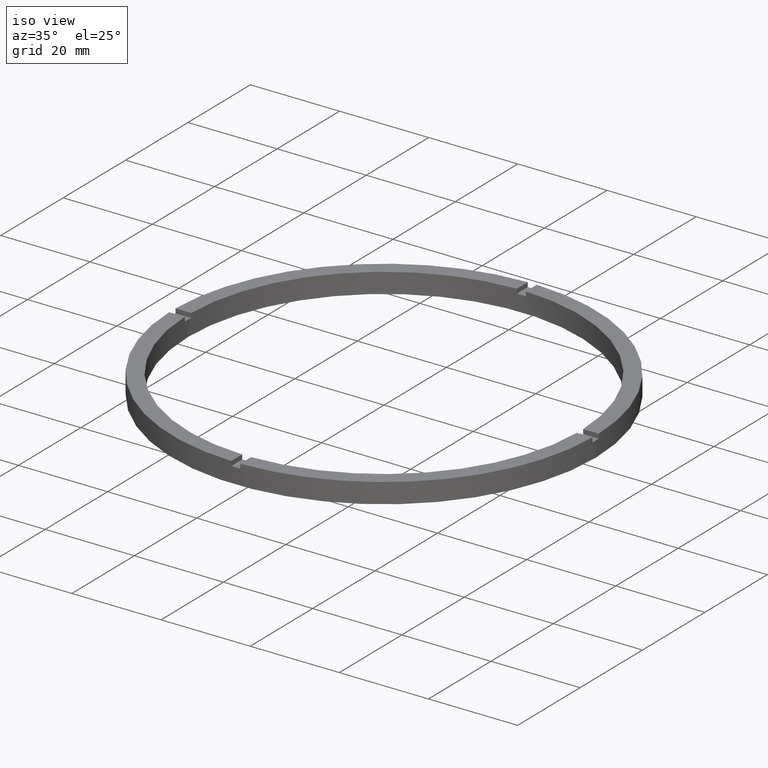
[diagram: clean part render]
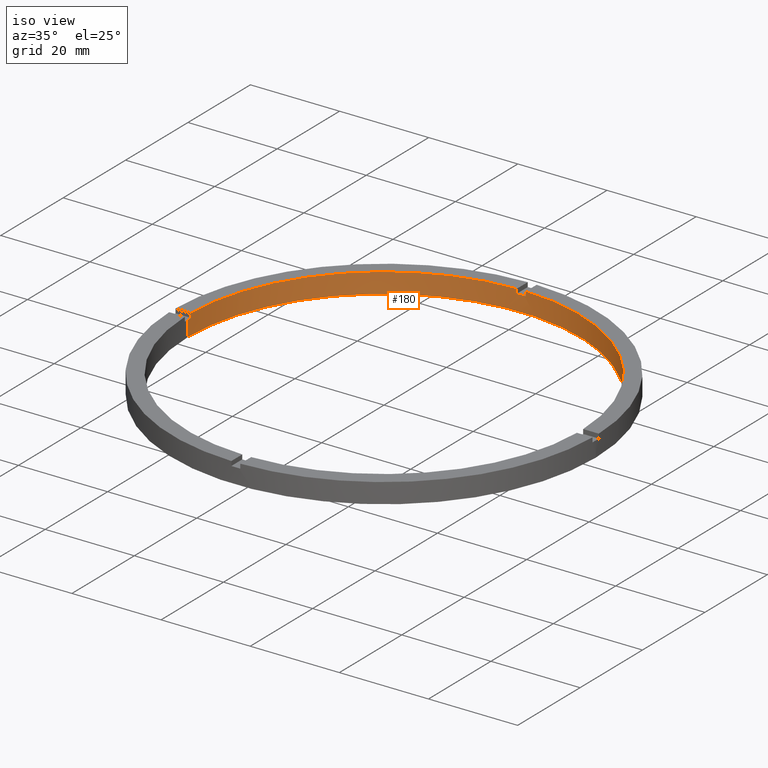
[diagram: same view with one face highlighted and labeled with its STEP entity id]
A machine part, iso view. The second image highlights one B-rep face of the part: STEP entity #180.
In plain terms, the highlighted cylindrical surface (partial cylindrical patch) has radius 44 mm, axis along (-0, -0, -1).
Its self-contained STEP definition (entity closure, byte-faithful):
#1 = EDGE_CURVE ( 'NONE', #493, #697, #99, .T. ) ;
#2 = CYLINDRICAL_SURFACE ( 'NONE', #44, 44.00000000000000000 ) ;
#42 = CARTESIAN_POINT ( 'NONE',  ( 0.000000000000000000, 0.000000000000000000, 4.500000000000000000 ) ) ;
#44 = AXIS2_PLACEMENT_3D ( 'NONE', #106, #563, #436 ) ;
#45 = DIRECTION ( 'NONE',  ( -0.000000000000000000, -0.000000000000000000, -1.000000000000000000 ) ) ;
#50 = CARTESIAN_POINT ( 'NONE',  ( -44.00000000000000000, 0.000000000000000000, 3.499999999999999556 ) ) ;
#71 = ORIENTED_EDGE ( 'NONE', *, *, #308, .T. ) ;
#78 = ORIENTED_EDGE ( 'NONE', *, *, #145, .F. ) ;
#82 = EDGE_CURVE ( 'NONE', #444, #192, #626, .T. ) ;
#84 = AXIS2_PLACEMENT_3D ( 'NONE', #42, #594, #349 ) ;
#89 = EDGE_CURVE ( 'NONE', #458, #712, #627, .T. ) ;
#99 = LINE ( 'NONE', #176, #610 ) ;
#106 = CARTESIAN_POINT ( 'NONE',  ( 0.000000000000000000, 0.000000000000000000, 4.500000000000000000 ) ) ;
#107 = CIRCLE ( 'NONE', #486, 44.00000000000000000 ) ;
#108 = CARTESIAN_POINT ( 'NONE',  ( 0.000000000000000000, 0.000000000000000000, 3.499999999999999556 ) ) ;
#116 = CIRCLE ( 'NONE', #312, 44.00000000000000000 ) ;
#131 = CARTESIAN_POINT ( 'NONE',  ( -44.00000000000000000, 0.000000000000000000, 0.000000000000000000 ) ) ;
#145 = EDGE_CURVE ( 'NONE', #712, #461, #107, .T. ) ;
#149 = AXIS2_PLACEMENT_3D ( 'NONE', #226, #291, #759 ) ;
#168 = ORIENTED_EDGE ( 'NONE', *, *, #414, .F. ) ;
#176 = CARTESIAN_POINT ( 'NONE',  ( -43.98863489584554287, 0.9999999999999701350, 4.500000000000000000 ) ) ;
#180 = ADVANCED_FACE ( 'NONE', ( #782 ), #2, .F. ) ;
#192 = VERTEX_POINT ( 'NONE', #664 ) ;
#226 = CARTESIAN_POINT ( 'NONE',  ( 0.000000000000000000, 0.000000000000000000, 4.500000000000000000 ) ) ;
#231 = VERTEX_POINT ( 'NONE', #561 ) ;
#249 = DIRECTION ( 'NONE',  ( 1.000000000000000000, 0.000000000000000000, 0.000000000000000000 ) ) ;
#276 = VECTOR ( 'NONE', #293, 1000.000000000000000 ) ;
#277 = LINE ( 'NONE', #403, #545 ) ;
#279 = CIRCLE ( 'NONE', #562, 44.00000000000000000 ) ;
#288 = CARTESIAN_POINT ( 'NONE',  ( 43.98863489584554287, 0.9999999999998441247, 4.500000000000000000 ) ) ;
#291 = DIRECTION ( 'NONE',  ( 0.000000000000000000, 0.000000000000000000, 1.000000000000000000 ) ) ;
#293 = DIRECTION ( 'NONE',  ( -0.000000000000000000, -0.000000000000000000, -1.000000000000000000 ) ) ;
#296 = CARTESIAN_POINT ( 'NONE',  ( -43.98863489584554287, 0.9999999999999701350, 4.500000000000000000 ) ) ;
#303 = DIRECTION ( 'NONE',  ( 1.000000000000000000, 0.000000000000000000, 0.000000000000000000 ) ) ;
#308 = EDGE_CURVE ( 'NONE', #751, #461, #776, .T. ) ;
#312 = AXIS2_PLACEMENT_3D ( 'NONE', #108, #507, #249 ) ;
#316 = DIRECTION ( 'NONE',  ( 0.000000000000000000, 0.000000000000000000, 1.000000000000000000 ) ) ;
#337 = CARTESIAN_POINT ( 'NONE',  ( 43.98863489584554287, 0.9999999999998441247, 3.499999999999999556 ) ) ;
#339 = DIRECTION ( 'NONE',  ( 0.000000000000000000, 0.000000000000000000, 1.000000000000000000 ) ) ;
#342 = DIRECTION ( 'NONE',  ( 0.000000000000000000, -0.000000000000000000, 1.000000000000000000 ) ) ;
#349 = DIRECTION ( 'NONE',  ( 1.000000000000000000, 0.000000000000000000, 0.000000000000000000 ) ) ;
#352 = DIRECTION ( 'NONE',  ( 0.000000000000000000, 0.000000000000000000, 1.000000000000000000 ) ) ;
#394 = CARTESIAN_POINT ( 'NONE',  ( 43.98863489584554287, 0.9999999999998441247, 4.500000000000000000 ) ) ;
#397 = VERTEX_POINT ( 'NONE', #394 ) ;
#403 = CARTESIAN_POINT ( 'NONE',  ( 0.9999999999999735767, 43.98863489584554287, 4.500000000000000000 ) ) ;
#414 = EDGE_CURVE ( 'NONE', #397, #496, #542, .T. ) ;
#420 = EDGE_CURVE ( 'NONE', #231, #691, #277, .T. ) ;
#429 = CIRCLE ( 'NONE', #535, 44.00000000000000000 ) ;
#434 = CIRCLE ( 'NONE', #84, 44.00000000000000000 ) ;
#436 = DIRECTION ( 'NONE',  ( -1.000000000000000000, 0.000000000000000000, 0.000000000000000000 ) ) ;
#442 = EDGE_CURVE ( 'NONE', #231, #192, #279, .T. ) ;
#444 = VERTEX_POINT ( 'NONE', #686 ) ;
#451 = ORIENTED_EDGE ( 'NONE', *, *, #420, .F. ) ;
#452 = ORIENTED_EDGE ( 'NONE', *, *, #638, .T. ) ;
#454 = DIRECTION ( 'NONE',  ( 0.000000000000000000, 0.000000000000000000, 1.000000000000000000 ) ) ;
#458 = VERTEX_POINT ( 'NONE', #706 ) ;
#461 = VERTEX_POINT ( 'NONE', #131 ) ;
#465 = DIRECTION ( 'NONE',  ( 1.000000000000000000, 0.000000000000000000, 0.000000000000000000 ) ) ;
#469 = ORIENTED_EDGE ( 'NONE', *, *, #442, .T. ) ;
#482 = ORIENTED_EDGE ( 'NONE', *, *, #731, .T. ) ;
#484 = CARTESIAN_POINT ( 'NONE',  ( 0.000000000000000000, 0.000000000000000000, 3.499999999999999556 ) ) ;
#486 = AXIS2_PLACEMENT_3D ( 'NONE', #708, #316, #505 ) ;
#493 = VERTEX_POINT ( 'NONE', #760 ) ;
#496 = VERTEX_POINT ( 'NONE', #337 ) ;
#503 = DIRECTION ( 'NONE',  ( -0.000000000000000000, -0.000000000000000000, -1.000000000000000000 ) ) ;
#505 = DIRECTION ( 'NONE',  ( 1.000000000000000000, 0.000000000000000000, 0.000000000000000000 ) ) ;
#507 = DIRECTION ( 'NONE',  ( 0.000000000000000000, 0.000000000000000000, 1.000000000000000000 ) ) ;
#522 = EDGE_CURVE ( 'NONE', #458, #496, #116, .T. ) ;
#535 = AXIS2_PLACEMENT_3D ( 'NONE', #484, #339, #465 ) ;
#542 = LINE ( 'NONE', #288, #276 ) ;
#545 = VECTOR ( 'NONE', #454, 1000.000000000000000 ) ;
#561 = CARTESIAN_POINT ( 'NONE',  ( 0.9999999999999735767, 43.98863489584554287, 3.499999999999999556 ) ) ;
#562 = AXIS2_PLACEMENT_3D ( 'NONE', #635, #342, #303 ) ;
#563 = DIRECTION ( 'NONE',  ( -0.000000000000000000, -0.000000000000000000, -1.000000000000000000 ) ) ;
#588 = CARTESIAN_POINT ( 'NONE',  ( 0.9999999999999735767, 43.98863489584554287, 4.500000000000000000 ) ) ;
#594 = DIRECTION ( 'NONE',  ( 0.000000000000000000, 0.000000000000000000, 1.000000000000000000 ) ) ;
#595 = ORIENTED_EDGE ( 'NONE', *, *, #82, .F. ) ;
#598 = DIRECTION ( 'NONE',  ( -0.000000000000000000, -0.000000000000000000, -1.000000000000000000 ) ) ;
#600 = EDGE_LOOP ( 'NONE', ( #673, #721, #168, #452, #451, #469, #595, #482, #704, #723, #71, #78 ) ) ;
#610 = VECTOR ( 'NONE', #352, 1000.000000000000000 ) ;
#626 = LINE ( 'NONE', #684, #631 ) ;
#627 = LINE ( 'NONE', #770, #629 ) ;
#629 = VECTOR ( 'NONE', #598, 1000.000000000000000 ) ;
#631 = VECTOR ( 'NONE', #45, 1000.000000000000000 ) ;
#635 = CARTESIAN_POINT ( 'NONE',  ( 0.000000000000000000, 0.000000000000000000, 3.499999999999999556 ) ) ;
#638 = EDGE_CURVE ( 'NONE', #397, #691, #663, .T. ) ;
#663 = CIRCLE ( 'NONE', #149, 44.00000000000000000 ) ;
#664 = CARTESIAN_POINT ( 'NONE',  ( -1.000000000000026423, 43.98863489584553577, 3.499999999999999556 ) ) ;
#673 = ORIENTED_EDGE ( 'NONE', *, *, #89, .F. ) ;
#684 = CARTESIAN_POINT ( 'NONE',  ( -1.000000000000026423, 43.98863489584553577, 4.500000000000000000 ) ) ;
#686 = CARTESIAN_POINT ( 'NONE',  ( -1.000000000000026423, 43.98863489584553577, 4.500000000000000000 ) ) ;
#691 = VERTEX_POINT ( 'NONE', #588 ) ;
#697 = VERTEX_POINT ( 'NONE', #296 ) ;
#704 = ORIENTED_EDGE ( 'NONE', *, *, #1, .F. ) ;
#706 = CARTESIAN_POINT ( 'NONE',  ( 44.00000000000000000, 5.388445916248353619E-15, 3.499999999999999556 ) ) ;
#708 = CARTESIAN_POINT ( 'NONE',  ( 0.000000000000000000, 0.000000000000000000, 0.000000000000000000 ) ) ;
#712 = VERTEX_POINT ( 'NONE', #767 ) ;
#716 = CARTESIAN_POINT ( 'NONE',  ( -44.00000000000000000, 0.000000000000000000, 4.500000000000000000 ) ) ;
#721 = ORIENTED_EDGE ( 'NONE', *, *, #522, .T. ) ;
#723 = ORIENTED_EDGE ( 'NONE', *, *, #747, .T. ) ;
#731 = EDGE_CURVE ( 'NONE', #444, #697, #434, .T. ) ;
#747 = EDGE_CURVE ( 'NONE', #493, #751, #429, .T. ) ;
#751 = VERTEX_POINT ( 'NONE', #50 ) ;
#759 = DIRECTION ( 'NONE',  ( 1.000000000000000000, 0.000000000000000000, 0.000000000000000000 ) ) ;
#760 = CARTESIAN_POINT ( 'NONE',  ( -43.98863489584554287, 0.9999999999999701350, 3.499999999999999556 ) ) ;
#767 = CARTESIAN_POINT ( 'NONE',  ( 44.00000000000000000, 5.388445916248353619E-15, 0.000000000000000000 ) ) ;
#768 = VECTOR ( 'NONE', #503, 1000.000000000000000 ) ;
#770 = CARTESIAN_POINT ( 'NONE',  ( 44.00000000000000000, 5.388445916248353619E-15, 4.500000000000000000 ) ) ;
#776 = LINE ( 'NONE', #716, #768 ) ;
#782 = FACE_OUTER_BOUND ( 'NONE', #600, .T. ) ;